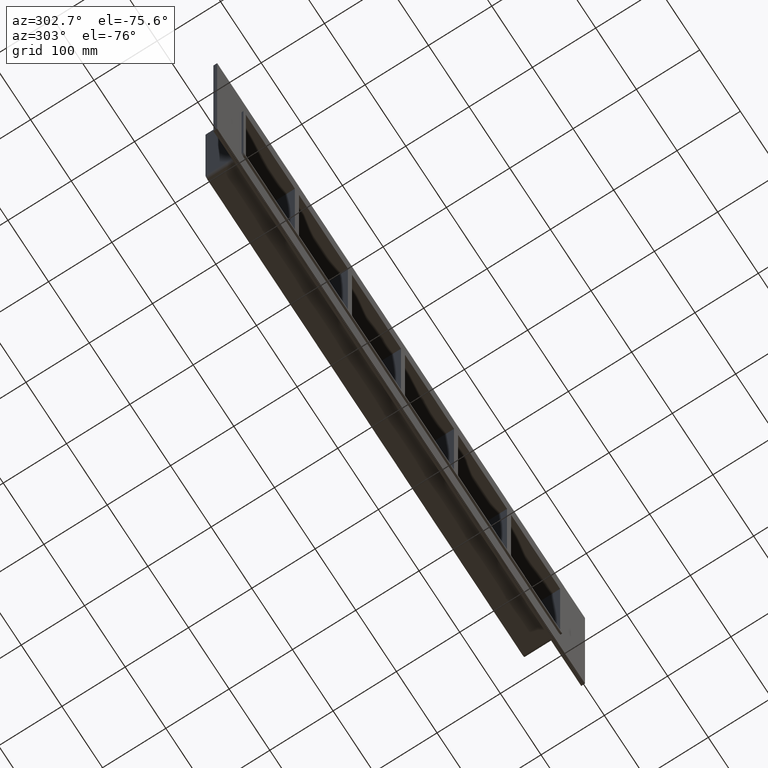
[diagram: clean part render]
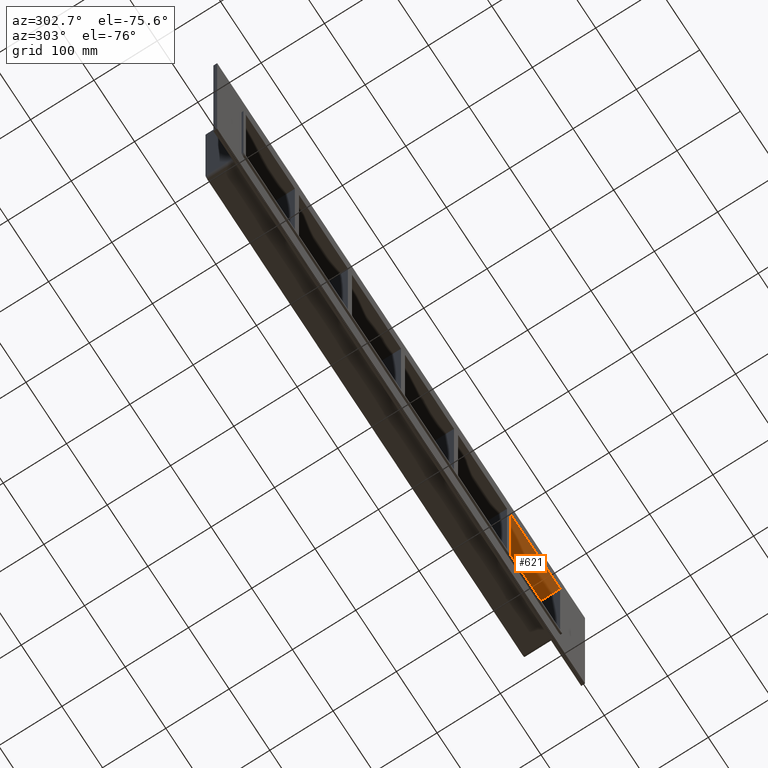
[diagram: same view with one face highlighted and labeled with its STEP entity id]
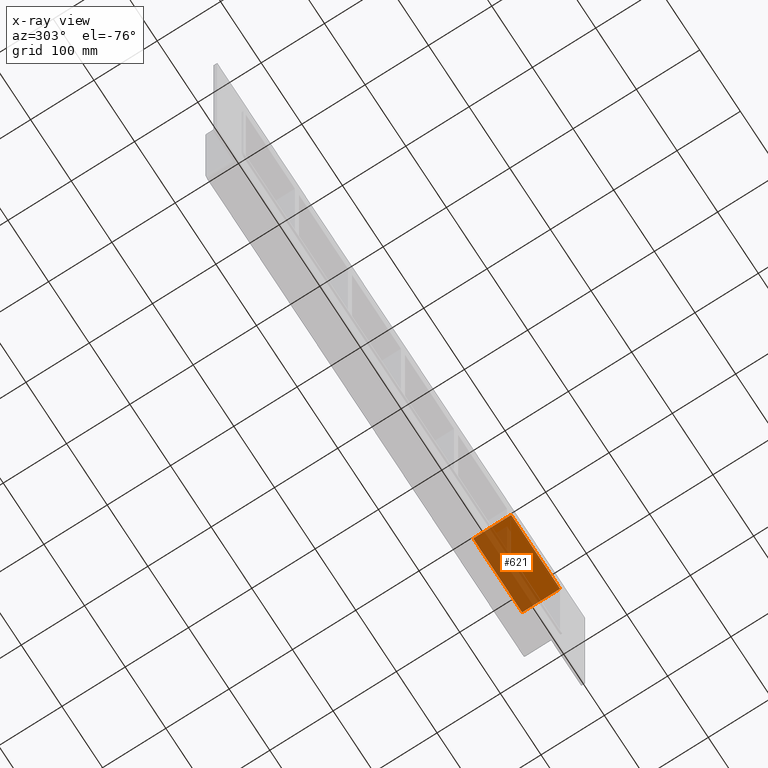
[diagram: x-ray of the same camera — body ghosted, the highlighted face saturated]
A machine part, auxiliary view. The second image highlights one B-rep face of the part: STEP entity #621.
The next image is the same camera in x-ray: the body ghosted, the highlighted face saturated — about 55% of this face is hidden behind the body in this view.
In plain terms, the highlighted planar face has unit normal (0, 0, 1).
Its self-contained STEP definition (entity closure, byte-faithful):
#113=CARTESIAN_POINT('',(265.99999999999642,-3.0,109.00000000000004));
#114=VERTEX_POINT('',#113);
#131=CARTESIAN_POINT('',(265.99999999999642,57.0,109.00000000000004));
#132=VERTEX_POINT('',#131);
#139=CARTESIAN_POINT('',(265.99999999999648,-3.0,109.00000000000003));
#140=DIRECTION('',(0.0,1.0,0.0));
#141=VECTOR('',#140,60.000000000000007);
#142=LINE('',#139,#141);
#143=EDGE_CURVE('',#114,#132,#142,.T.);
#591=CARTESIAN_POINT('',(-386.50000000000011,0.0,109.00000000000003));
#592=DIRECTION('',(0.0,0.0,1.0));
#593=DIRECTION('',(1.0,0.0,0.0));
#594=AXIS2_PLACEMENT_3D('',#591,#592,#593);
#595=PLANE('',#594);
#596=ORIENTED_EDGE('',*,*,#143,.T.);
#597=CARTESIAN_POINT('',(386.50000000000011,57.0,109.00000000000004));
#598=VERTEX_POINT('',#597);
#599=CARTESIAN_POINT('',(386.50000000000011,57.0,109.00000000000003));
#600=DIRECTION('',(-1.0,0.0,0.0));
#601=VECTOR('',#600,120.50000000000364);
#602=LINE('',#599,#601);
#603=EDGE_CURVE('',#598,#132,#602,.T.);
#604=ORIENTED_EDGE('',*,*,#603,.F.);
#605=CARTESIAN_POINT('',(386.50000000000011,-3.0,109.00000000000004));
#606=VERTEX_POINT('',#605);
#607=CARTESIAN_POINT('',(386.50000000000011,-3.0,109.00000000000003));
#608=DIRECTION('',(0.0,1.0,0.0));
#609=VECTOR('',#608,60.0);
#610=LINE('',#607,#609);
#611=EDGE_CURVE('',#606,#598,#610,.T.);
#612=ORIENTED_EDGE('',*,*,#611,.F.);
#613=CARTESIAN_POINT('',(265.99999999999648,-3.0,109.00000000000003));
#614=DIRECTION('',(1.0,0.0,0.0));
#615=VECTOR('',#614,120.50000000000364);
#616=LINE('',#613,#615);
#617=EDGE_CURVE('',#114,#606,#616,.T.);
#618=ORIENTED_EDGE('',*,*,#617,.F.);
#619=EDGE_LOOP('',(#596,#604,#612,#618));
#620=FACE_OUTER_BOUND('',#619,.T.);
#621=ADVANCED_FACE('',(#620),#595,.F.);